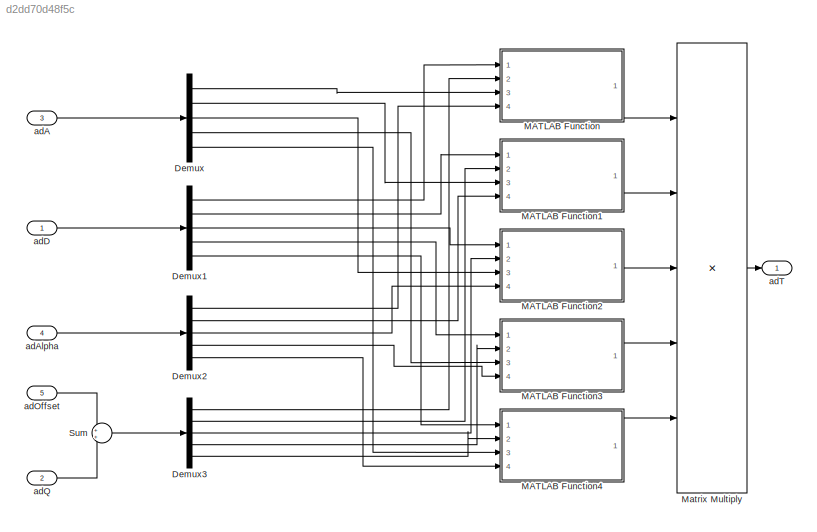
MODEL slx_d2dd70d48f5c
KIND model
CONFIG AbsTol = auto
CONFIG EnableMultiTasking = off
CONFIG FixedStep = auto
CONFIG MaxStep = auto
CONFIG MinStep = auto
CONFIG RelTol = 1e-3
CONFIG SampleTimeConstraint = Unconstrained
CONFIG SolverName = VariableStepAuto
CONFIG StartTime = 0.0
CONFIG StopTime = 10.0
BLOCK [Demux] Demux
  Outputs = 5
  Ports = [1, 5]
BLOCK [Demux] Demux1
  Outputs = 5
  Ports = [1, 5]
BLOCK [Demux] Demux2
  Outputs = 5
  Ports = [1, 5]
BLOCK [Demux] Demux3
  Outputs = 5
  Ports = [1, 5]
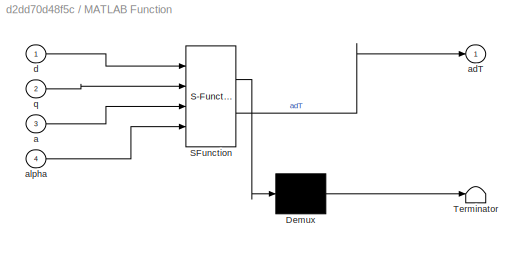
BLOCK [SubSystem] MATLAB Function
  ErrorFcn = Stateflow.Translate.translate
  PermitHierarchicalResolution = ExplicitOnly
  Ports = [4, 1]
  RequestExecContextInheritance = off
  SFBlockType = MATLAB Function
  TreatAsAtomicUnit = on
BLOCK [Demux] MATLAB Function/ Demux 
  Outputs = 1
  Ports = [1, 1]
BLOCK [S-Function] MATLAB Function/ SFunction 
  EnableBusSupport = on
  FunctionName = sf_sfun
  PortCounts = [4 2]
  Ports = [4, 2]
  SFcnIsStateOwnerBlock = off
  SFunctionDeploymentMode = off
  Tag = Stateflow S-Function 2
BLOCK [Terminator] MATLAB Function/ Terminator 
BLOCK [Inport] MATLAB Function/a
  Port = 3
BLOCK [Outport] MATLAB Function/adT
BLOCK [Inport] MATLAB Function/alpha
  Port = 4
BLOCK [Inport] MATLAB Function/d
BLOCK [Inport] MATLAB Function/q
  Port = 2
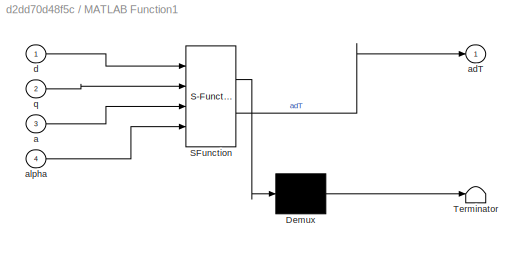
BLOCK [SubSystem] MATLAB Function1
  ErrorFcn = Stateflow.Translate.translate
  PermitHierarchicalResolution = ExplicitOnly
  Ports = [4, 1]
  RequestExecContextInheritance = off
  SFBlockType = MATLAB Function
  TreatAsAtomicUnit = on
BLOCK [Demux] MATLAB Function1/ Demux 
  Outputs = 1
  Ports = [1, 1]
BLOCK [S-Function] MATLAB Function1/ SFunction 
  EnableBusSupport = on
  FunctionName = sf_sfun
  PortCounts = [4 2]
  Ports = [4, 2]
  SFcnIsStateOwnerBlock = off
  SFunctionDeploymentMode = off
  Tag = Stateflow S-Function 1
BLOCK [Terminator] MATLAB Function1/ Terminator 
BLOCK [Inport] MATLAB Function1/a
  Port = 3
BLOCK [Outport] MATLAB Function1/adT
BLOCK [Inport] MATLAB Function1/alpha
  Port = 4
BLOCK [Inport] MATLAB Function1/d
BLOCK [Inport] MATLAB Function1/q
  Port = 2
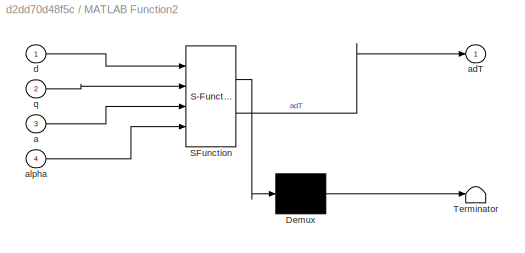
BLOCK [SubSystem] MATLAB Function2
  ErrorFcn = Stateflow.Translate.translate
  PermitHierarchicalResolution = ExplicitOnly
  Ports = [4, 1]
  RequestExecContextInheritance = off
  SFBlockType = MATLAB Function
  TreatAsAtomicUnit = on
BLOCK [Demux] MATLAB Function2/ Demux 
  Outputs = 1
  Ports = [1, 1]
BLOCK [S-Function] MATLAB Function2/ SFunction 
  EnableBusSupport = on
  FunctionName = sf_sfun
  PortCounts = [4 2]
  Ports = [4, 2]
  SFcnIsStateOwnerBlock = off
  SFunctionDeploymentMode = off
  Tag = Stateflow S-Function 3
BLOCK [Terminator] MATLAB Function2/ Terminator 
BLOCK [Inport] MATLAB Function2/a
  Port = 3
BLOCK [Outport] MATLAB Function2/adT
BLOCK [Inport] MATLAB Function2/alpha
  Port = 4
BLOCK [Inport] MATLAB Function2/d
BLOCK [Inport] MATLAB Function2/q
  Port = 2
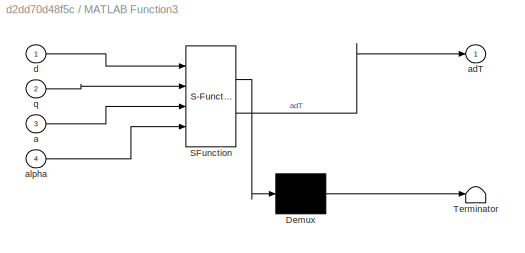
BLOCK [SubSystem] MATLAB Function3
  ErrorFcn = Stateflow.Translate.translate
  PermitHierarchicalResolution = ExplicitOnly
  Ports = [4, 1]
  RequestExecContextInheritance = off
  SFBlockType = MATLAB Function
  TreatAsAtomicUnit = on
BLOCK [Demux] MATLAB Function3/ Demux 
  Outputs = 1
  Ports = [1, 1]
BLOCK [S-Function] MATLAB Function3/ SFunction 
  EnableBusSupport = on
  FunctionName = sf_sfun
  PortCounts = [4 2]
  Ports = [4, 2]
  SFcnIsStateOwnerBlock = off
  SFunctionDeploymentMode = off
  Tag = Stateflow S-Function 4
BLOCK [Terminator] MATLAB Function3/ Terminator 
BLOCK [Inport] MATLAB Function3/a
  Port = 3
BLOCK [Outport] MATLAB Function3/adT
BLOCK [Inport] MATLAB Function3/alpha
  Port = 4
BLOCK [Inport] MATLAB Function3/d
BLOCK [Inport] MATLAB Function3/q
  Port = 2
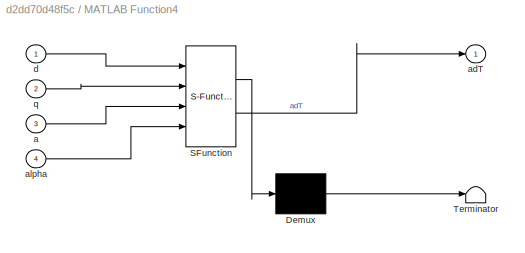
BLOCK [SubSystem] MATLAB Function4
  ErrorFcn = Stateflow.Translate.translate
  PermitHierarchicalResolution = ExplicitOnly
  Ports = [4, 1]
  RequestExecContextInheritance = off
  SFBlockType = MATLAB Function
  TreatAsAtomicUnit = on
BLOCK [Demux] MATLAB Function4/ Demux 
  Outputs = 1
  Ports = [1, 1]
BLOCK [S-Function] MATLAB Function4/ SFunction 
  EnableBusSupport = on
  FunctionName = sf_sfun
  PortCounts = [4 2]
  Ports = [4, 2]
  SFcnIsStateOwnerBlock = off
  SFunctionDeploymentMode = off
  Tag = Stateflow S-Function 5
BLOCK [Terminator] MATLAB Function4/ Terminator 
BLOCK [Inport] MATLAB Function4/a
  Port = 3
BLOCK [Outport] MATLAB Function4/adT
BLOCK [Inport] MATLAB Function4/alpha
  Port = 4
BLOCK [Inport] MATLAB Function4/d
BLOCK [Inport] MATLAB Function4/q
  Port = 2
BLOCK [Product] Matrix Multiply
  Inputs = 5
  Multiplication = Matrix(*)
  Ports = [5, 1]
BLOCK [Sum] Sum
  Ports = [2, 1]
BLOCK [Inport] adA
  Port = 3
BLOCK [Inport] adAlpha
  Port = 4
BLOCK [Inport] adD
BLOCK [Inport] adOffset
  Port = 5
BLOCK [Inport] adQ
  Port = 2
BLOCK [Outport] adT
LINE Demux1:1 -> MATLAB Function:1
LINE Demux1:2 -> MATLAB Function1:1
LINE Demux1:3 -> MATLAB Function2:1
LINE Demux1:4 -> MATLAB Function3:1
LINE Demux1:5 -> MATLAB Function4:1
LINE Demux2:1 -> MATLAB Function:4
LINE Demux2:2 -> MATLAB Function1:4
LINE Demux2:3 -> MATLAB Function2:4
LINE Demux2:4 -> MATLAB Function3:4
LINE Demux2:5 -> MATLAB Function4:4
LINE Demux3:1 -> MATLAB Function:2
LINE Demux3:2 -> MATLAB Function1:2
LINE Demux3:3 -> MATLAB Function2:2
LINE Demux3:4 -> MATLAB Function3:2
LINE Demux3:5 -> MATLAB Function4:2
LINE Demux:1 -> MATLAB Function:3
LINE Demux:2 -> MATLAB Function1:3
LINE Demux:3 -> MATLAB Function2:3
LINE Demux:4 -> MATLAB Function3:3
LINE Demux:5 -> MATLAB Function4:3
LINE MATLAB Function1:1 -> Matrix Multiply:2
LINE MATLAB Function2:1 -> Matrix Multiply:3
LINE MATLAB Function3:1 -> Matrix Multiply:4
LINE MATLAB Function4:1 -> Matrix Multiply:5
LINE MATLAB Function:1 -> Matrix Multiply:1
LINE Matrix Multiply:1 -> adT:1
LINE Sum:1 -> Demux3:1
LINE adA:1 -> Demux:1
LINE adAlpha:1 -> Demux2:1
LINE adD:1 -> Demux1:1
LINE adOffset:1 -> Sum:1
LINE adQ:1 -> Sum:2
CHART MATLAB Function1 states=1 transitions=1
  STATE_LABEL 'eML_blk_kernel()'
  STATE_LABEL 'SCRIPT:\nfunction adT = kin(d, q, a, alpha)\n    adT = functions.computeT(d, q, a, alpha);\nend\n'
CHART MATLAB Function states=1 transitions=1
  STATE_LABEL 'eML_blk_kernel()'
  STATE_LABEL 'SCRIPT:\nfunction adT = kin(d, q, a, alpha)\n    adT = functions.computeT(d, q, a, alpha);\nend\n'
CHART MATLAB Function2 states=1 transitions=1
  STATE_LABEL 'eML_blk_kernel()'
  STATE_LABEL 'SCRIPT:\nfunction adT = kin(d, q, a, alpha)\n    adT = functions.computeT(d, q, a, alpha);\nend\n'
CHART MATLAB Function3 states=1 transitions=1
  STATE_LABEL 'eML_blk_kernel()'
  STATE_LABEL 'SCRIPT:\nfunction adT = kin(d, q, a, alpha)\n    adT = functions.computeT(d, q, a, alpha);\nend\n'
CHART MATLAB Function4 states=1 transitions=1
  STATE_LABEL 'eML_blk_kernel()'
  STATE_LABEL 'SCRIPT:\nfunction adT = kin(d, q, a, alpha)\n    adT = functions.computeT(d, q, a, alpha);\nend\n'
CHART  states=0 transitions=0
CHART  states=0 transitions=0
CHART  states=0 transitions=0
CHART  states=0 transitions=0
CHART  states=0 transitions=0
